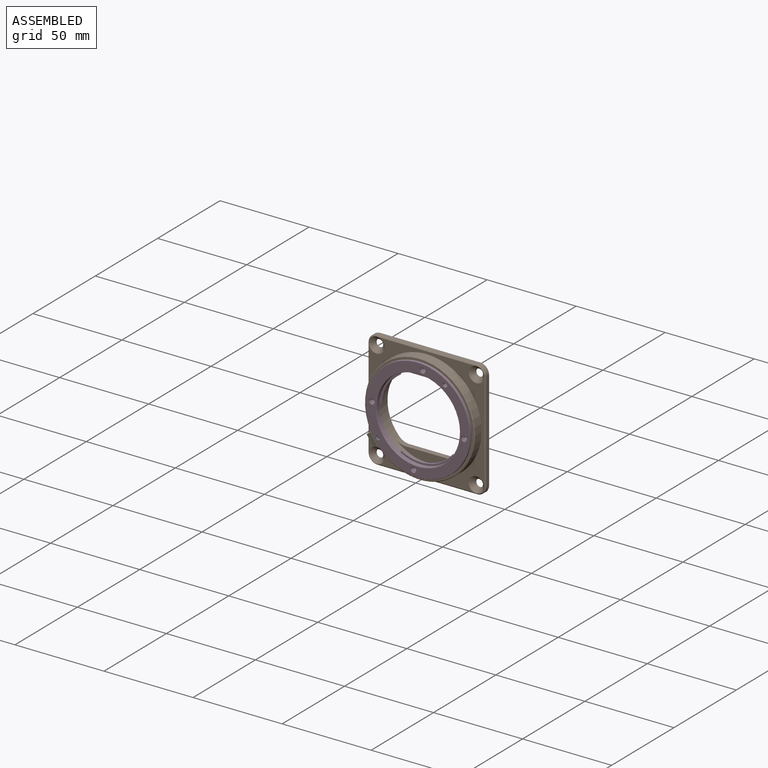
[diagram: assembled view]
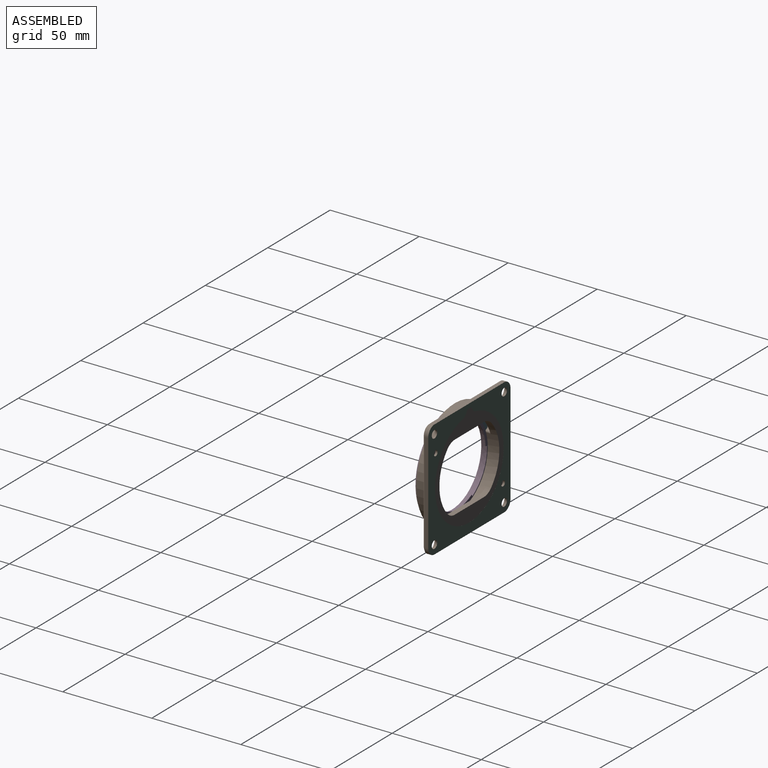
[diagram: assembled view, second angle]
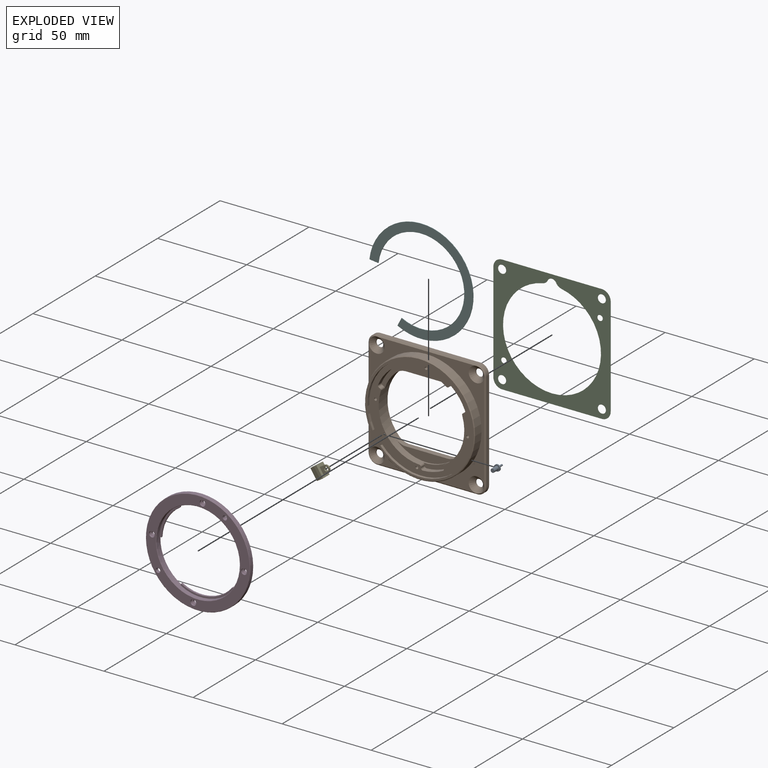
[diagram: exploded view]
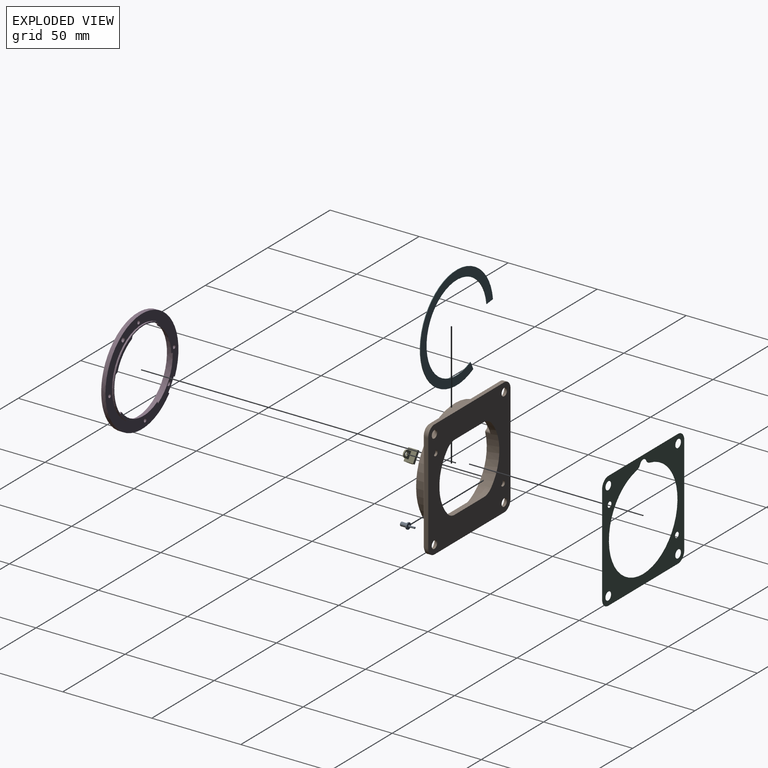
[diagram: exploded view, second angle]
ASSEMBLY  parts=6 mates=6
PART A: 7 faces, bbox 3.5x3.5x7.7 mm
  f0: cylinder r=1.07mm len=3.5mm, axis (0,0,-1), area 23.6mm2, adj f1,f4
  f1: plane 2.15x2.15mm, normal (0,0,-1), area 3.6mm2, adj f0
  f2: cylinder r=1.75mm len=3.5mm, axis (0,0,-1), area 7.5mm2, adj f3,f4
  f3: plane 3.5x3.5mm, normal (0,0,1), area 8.9mm2, adj f2,f5
  f4: plane 3.5x3.5mm, normal (0,0,-1), area 6mm2, adj f0,f2
  f5: cylinder r=0.47mm len=3.5mm, axis (0,0,-1), area 10.4mm2, adj f3,f6
  f6: plane 0.95x0.95mm, normal (0,0,1), area 0.7mm2, adj f5
PART B: 93 faces, bbox 66x8.6x66 mm
  f0: plane 4.07x0.53mm, normal (-0.83,0,-0.55), area 2.6mm2, adj f1,f2,f7,f22
  f1: cylinder r=2mm len=4.07mm, axis (0,-1,0), area 12.1mm2, adj f0,f7,f22,f52
  f2: cylinder r=2mm len=4.07mm, axis (0,-1,0), area 12.1mm2, adj f0,f7,f22,f53
  f3: plane 5.57x1.42mm, normal (0.44,0,-0.9), area 4.3mm2, adj f6,f7,f9,f22,f82,f83,f84
  f4: plane 5.57x1.19mm, normal (-0.66,0,0.75), area 4.3mm2, adj f5,f7,f9,f22,f82,f83,f84
  f5: cylinder r=0.5mm len=4.07mm, axis (0,1,0), area 2.9mm2, adj f4,f7,f22,f55
  f6: cylinder r=0.5mm len=4.07mm, axis (0,-1,0), area 2.9mm2, adj f3,f7,f22,f54
  f7: plane 58.65x58.65mm, normal (0,-1,0), area 759mm2, adj f0,f1,f2,f3,f4,f5,f6,f8
  f8: cylinder r=24.05mm len=48.1mm, axis (0,1,0), area 701.3mm2, adj f7,f23,f37,f39,f40,f41,f42,f43
  f9: cylinder r=30.9mm len=61.8mm, axis (0,1,0), area 961.4mm2, adj f3,f4,f22,f84
  f10: plane 56x2.3mm, normal (0,0,-1), area 128.8mm2, adj f11,f17,f23,f33
  f11: cylinder r=5mm len=5mm, axis (0,1,0), area 18.1mm2, adj f10,f12,f23,f35
  f12: plane 56x2.3mm, normal (1,0,0), area 128.8mm2, adj f11,f13,f23,f34
  f13: cylinder r=5mm len=5mm, axis (0,1,0), area 18.1mm2, adj f12,f14,f23,f32
  f14: plane 56x2.3mm, normal (0,0,1), area 128.8mm2, adj f13,f15,f23,f30
  f15: cylinder r=5mm len=5mm, axis (0,1,0), area 18.1mm2, adj f14,f16,f23,f28
  f16: plane 56x2.3mm, normal (-1,0,0), area 128.8mm2, adj f15,f17,f23,f29
  f17: cylinder r=5mm len=5mm, axis (0,1,0), area 18.1mm2, adj f10,f16,f23,f31
  f18: cylinder r=2.15mm len=4.3mm, axis (0,1,0), area 10.8mm2, adj f23,f26
  f19: cylinder r=2.15mm len=4.3mm, axis (0,1,0), area 10.8mm2, adj f23,f27
  f20: cylinder r=2.15mm len=4.3mm, axis (0,1,0), area 10.8mm2, adj f23,f24
  f21: cylinder r=2.15mm len=4.3mm, axis (0,1,0), area 10.8mm2, adj f23,f25
  f22: plane 64.6x64.6mm, normal (0,-1,0), area 949.8mm2, adj f0,f1,f2,f3,f4,f5,f6,f9
  f23: plane 66x66mm, normal (0,1,0), area 2650.2mm2, adj f8,f10,f11,f12,f13,f14,f15,f16
  f24: cone r=2.15mm half-angle=45deg, axis (0,-1,0), area 63.3mm2, adj f20,f22,f33,f34,f35
  f25: cone r=4.35mm half-angle=45deg, axis (0,-1,0), area 63.3mm2, adj f21,f22,f29,f31,f33
  f26: cone r=2.15mm half-angle=45deg, axis (0,-1,0), area 63.3mm2, adj f18,f22,f28,f29,f30
  f27: cone r=4.35mm half-angle=45deg, axis (0,-1,0), area 63.3mm2, adj f19,f22,f30,f32,f34
  f28: cone r=4.3mm half-angle=45deg, axis (0,1,0), area 7mm2, adj f15,f26,f29,f30
  f29: plane 56.02x0.72mm, normal (-0.71,-0.71,0), area 55.4mm2, adj f16,f22,f25,f26,f28,f31
  f30: plane 56.02x0.72mm, normal (0,-0.71,0.71), area 55.4mm2, adj f14,f22,f26,f27,f28,f32
  f31: cone r=4.3mm half-angle=45deg, axis (0,1,0), area 7mm2, adj f17,f25,f29,f33
  f32: cone r=4.3mm half-angle=45deg, axis (0,1,0), area 7mm2, adj f13,f27,f30,f34
  f33: plane 56.02x0.72mm, normal (0,-0.71,-0.71), area 55.4mm2, adj f10,f22,f24,f25,f31,f35
  f34: plane 56.02x0.72mm, normal (0.71,-0.71,0), area 55.4mm2, adj f12,f22,f24,f27,f32,f35
  f35: cone r=4.3mm half-angle=45deg, axis (0,1,0), area 7mm2, adj f11,f24,f33,f34
  f36: plane 23.28x3mm, normal (0,0,1), area 69.8mm2, adj f23,f37,f40,f41
  f37: plane 34.89x7.49mm, normal (0,-1,0), area 102.5mm2, adj f8,f36,f40,f41
  f38: plane 23.28x3mm, normal (0,0,-1), area 69.8mm2, adj f23,f39,f42,f43
  f39: plane 34.89x7.49mm, normal (0,-1,0), area 102.5mm2, adj f8,f38,f42,f43
  f40: cylinder r=8mm len=5.8mm, axis (0,1,0), area 19.5mm2, adj f8,f23,f36,f37
  f41: cylinder r=8mm len=5.8mm, axis (0,1,0), area 19.5mm2, adj f8,f23,f36,f37
  f42: cylinder r=8mm len=5.8mm, axis (0,1,0), area 19.5mm2, adj f8,f23,f38,f39
  f43: cylinder r=8mm len=5.8mm, axis (0,1,0), area 19.5mm2, adj f8,f23,f38,f39
  f44: cylinder r=0.75mm len=5mm, axis (0,-1,0), area 23.6mm2, adj f7,f45
  f45: plane 1.5x1.5mm, normal (0,-1,0), area 1.8mm2, adj f44
  f46: cylinder r=0.75mm len=5mm, axis (0,-1,0), area 23.6mm2, adj f7,f47
  f47: plane 1.5x1.5mm, normal (0,-1,0), area 1.8mm2, adj f46
  f48: cylinder r=0.75mm len=5mm, axis (0,-1,0), area 23.6mm2, adj f7,f49
  f49: plane 1.5x1.5mm, normal (0,-1,0), area 1.8mm2, adj f48
  f50: cylinder r=0.75mm len=5mm, axis (0,-1,0), area 23.6mm2, adj f7,f51
  f51: plane 1.5x1.5mm, normal (0,-1,0), area 1.8mm2, adj f50
  f52: plane 4.07x2.21mm, normal (-0.62,0,0.78), area 11.5mm2, adj f1,f7,f22,f81
  f53: plane 4.07x2.48mm, normal (0.48,0,-0.88), area 11.5mm2, adj f2,f7,f22,f80
  f54: plane 4.07x0.42mm, normal (-0.83,0,-0.55), area 2.1mm2, adj f6,f7,f22,f80
  f55: plane 4.07x0.42mm, normal (-0.83,0,-0.55), area 2.1mm2, adj f5,f7,f22,f81
  f56: plane 3x0.39mm, normal (-0.87,0,-0.49), area 1.4mm2, adj f7,f59,f68,f71
  f57: plane 3x0.45mm, normal (1,0,-0.01), area 1.4mm2, adj f7,f59,f69,f70
  f58: cylinder r=26.5mm len=11.34mm, axis (0,-1,0), area 35.4mm2, adj f7,f59,f68,f69
  f59: plane 13.85x6mm, normal (0,-1,0), area 32.4mm2, adj f8,f56,f57,f58,f68,f69,f70,f71
  f60: plane 3x0.42mm, normal (-0.35,0,0.94), area 1.4mm2, adj f7,f63,f72,f73
  f61: cylinder r=26.5mm len=10.15mm, axis (0,-1,0), area 38.2mm2, adj f7,f63,f73,f74
  f62: plane 3x0.36mm, normal (0.79,0,-0.61), area 1.4mm2, adj f7,f63,f74,f75
  f63: plane 13.11x10.62mm, normal (0,-1,0), area 34.5mm2, adj f8,f60,f61,f62,f72,f73,f74,f75
  f64: cylinder r=26.5mm len=9.5mm, axis (0,-1,0), area 35.4mm2, adj f7,f67,f76,f79
  f65: plane 3x0.42mm, normal (0.35,0,0.94), area 1.4mm2, adj f7,f67,f78,f79
  f66: plane 3x0.35mm, normal (-0.77,0,-0.63), area 1.4mm2, adj f7,f67,f76,f77
  f67: plane 12.49x10mm, normal (0,-1,0), area 32.4mm2, adj f8,f64,f65,f66,f76,f77,f78,f79
  f68: cylinder r=1mm len=3mm, axis (0,-1,0), area 4.8mm2, adj f7,f56,f58,f59
  f69: cylinder r=1mm len=3mm, axis (0,-1,0), area 4.8mm2, adj f7,f57,f58,f59
  f70: cylinder r=1mm len=3mm, axis (0,1,0), area 4.6mm2, adj f7,f8,f57,f59
  f71: cylinder r=1mm len=3mm, axis (0,1,0), area 4.6mm2, adj f7,f8,f56,f59
  f72: cylinder r=1mm len=3mm, axis (0,1,0), area 4.6mm2, adj f7,f8,f60,f63
  f73: cylinder r=1mm len=3mm, axis (0,-1,0), area 4.8mm2, adj f7,f60,f61,f63
  f74: cylinder r=1mm len=3mm, axis (0,-1,0), area 4.8mm2, adj f7,f61,f62,f63
  f75: cylinder r=1mm len=3mm, axis (0,1,0), area 4.6mm2, adj f7,f8,f62,f63
  f76: cylinder r=1mm len=3mm, axis (0,-1,0), area 4.8mm2, adj f7,f64,f66,f67
  f77: cylinder r=1mm len=3mm, axis (0,1,0), area 4.6mm2, adj f7,f8,f66,f67
  f78: cylinder r=1mm len=3mm, axis (0,1,0), area 4.6mm2, adj f7,f8,f65,f67
  f79: cylinder r=1mm len=3mm, axis (0,-1,0), area 4.8mm2, adj f7,f64,f65,f67
  f80: cylinder r=0.5mm len=4.07mm, axis (0,1,0), area 3mm2, adj f7,f22,f53,f54
  f81: cylinder r=0.5mm len=4.07mm, axis (0,1,0), area 3mm2, adj f7,f22,f52,f55
  f82: cylinder r=29.32mm len=58.65mm, axis (0,1,0), area 264.6mm2, adj f3,f4,f7,f83
  f83: plane 61x61mm, normal (0,-1,0), area 211.4mm2, adj f3,f4,f82,f84
  f84: cone r=30.5mm half-angle=45deg, axis (0,1,0), area 104.5mm2, adj f3,f4,f9,f83
  f85: plane 1.1x1.1mm, normal (0,-1,0), area 1mm2, adj f86
  f86: cylinder r=0.55mm len=4mm, axis (0,-1,0), area 13.8mm2, adj f85,f87
  f87: plane 2.1x2.1mm, normal (0,-1,0), area 2.5mm2, adj f86,f88
  f88: cylinder r=1.05mm len=2.1mm, axis (0,-1,0), area 13.7mm2, adj f22,f87
  f89: cylinder r=1.5mm len=3mm, axis (0,1,0), area 11.3mm2, adj f23,f90
  f90: plane 3x3mm, normal (0,1,0), area 7.1mm2, adj f89
  f91: cylinder r=1.5mm len=3mm, axis (0,1,0), area 11.3mm2, adj f23,f92
  f92: plane 3x3mm, normal (0,1,0), area 7.1mm2, adj f91
PART C: 20 faces, bbox 65.9x65.9x0 mm
  f0: plane 55.9x0.01mm, normal (0,-1,0), area 0.6mm2, adj f1,f17,f18,f19
  f1: cylinder r=5mm len=5mm, axis (0,0,-1), area 0.1mm2, adj f0,f2,f18,f19
  f2: plane 55.9x0.01mm, normal (1,0,0), area 0.6mm2, adj f1,f3,f18,f19
  f3: cylinder r=5mm len=5mm, axis (0,0,-1), area 0.1mm2, adj f2,f4,f18,f19
  f4: plane 55.9x0.01mm, normal (0,1,0), area 0.6mm2, adj f3,f5,f18,f19
  f5: cylinder r=5mm len=5mm, axis (0,0,-1), area 0.1mm2, adj f4,f6,f18,f19
  f6: plane 55.9x0.01mm, normal (-1,0,0), area 0.6mm2, adj f5,f17,f18,f19
  f7: cylinder r=2.65mm len=4.76mm, axis (0,0,-1), area 0.1mm2, adj f8,f16,f18,f19
  f8: cylinder r=4mm len=2.83mm, axis (0,0,-1), area 0mm2, adj f7,f9,f18,f19
  f9: cylinder r=27.5mm len=55mm, axis (0,0,-1), area 1.6mm2, adj f8,f16,f18,f19
  f10: cylinder r=2.25mm len=4.5mm, axis (0,0,-1), area 0.1mm2, adj f18,f19
  f11: cylinder r=2.25mm len=4.5mm, axis (0,0,-1), area 0.1mm2, adj f18,f19
  f12: cylinder r=2.25mm len=4.5mm, axis (0,0,-1), area 0.1mm2, adj f18,f19
  f13: cylinder r=1.5mm len=3mm, axis (0,0,-1), area 0.1mm2, adj f18,f19
  f14: cylinder r=1.5mm len=3mm, axis (0,0,-1), area 0.1mm2, adj f18,f19
  f15: cylinder r=2.25mm len=4.5mm, axis (0,0,-1), area 0.1mm2, adj f18,f19
  f16: cylinder r=4mm len=2.83mm, axis (0,0,-1), area 0mm2, adj f7,f9,f18,f19
  f17: cylinder r=5mm len=5mm, axis (0,0,-1), area 0.1mm2, adj f0,f6,f18,f19
  f18: plane 65.9x65.9mm, normal (0,0,1), area 1851.8mm2, adj f0,f1,f2,f3,f4,f5,f6,f7
  f19: plane 65.9x65.9mm, normal (0,0,-1), area 1851.8mm2, adj f0,f1,f2,f3,f4,f5,f6,f7
PART D: 48 faces, bbox 58.6x58.6x3.4 mm
  f0: cylinder r=1.25mm len=2.5mm, axis (0,0,-1), area 14.9mm2, adj f9,f47
  f1: plane 58.6x58.6mm, normal (0,0,-1), area 827.8mm2, adj f2,f3,f4,f5,f7,f8,f22,f43
  f2: cylinder r=1mm len=2mm, axis (0,0,-1), area 7.8mm2, adj f1,f39
  f3: cylinder r=1mm len=2mm, axis (0,0,-1), area 7.8mm2, adj f1,f41
  f4: cylinder r=1mm len=2mm, axis (0,0,-1), area 7.8mm2, adj f1,f35
  f5: cylinder r=1mm len=2mm, axis (0,0,-1), area 7.8mm2, adj f1,f37
  f6: cylinder r=23.45mm len=46.9mm, axis (0,0,-1), area 401.1mm2, adj f10,f11,f12,f14,f15,f17,f18,f20
  f7: cylinder r=1.25mm len=2.5mm, axis (0,0,-1), area 19.6mm2, adj f1,f9
  f8: cylinder r=29.3mm len=58.6mm, axis (0,0,-1), area 418.6mm2, adj f1,f33,f44,f45,f47
  f9: plane 58.2x58.2mm, normal (0,0,1), area 861.2mm2, adj f0,f7,f33,f34,f36,f38,f40,f42
  f10: plane 29.17x11.36mm, normal (0,0,1), area 30.9mm2, adj f6,f27,f28,f29
  f11: plane 14.61x12.93mm, normal (0,0,1), area 17.9mm2, adj f6,f30,f31,f32
  f12: plane 20.42x9.69mm, normal (0,0,1), area 21.4mm2, adj f6,f24,f25,f26
  f13: cylinder r=22.3mm len=12.78mm, axis (0,0,1), area 12.3mm2, adj f14,f21,f23,f31
  f14: plane 1.43x0.7mm, normal (0.9,0.44,0), area 1.1mm2, adj f6,f13,f23,f30
  f15: plane 1.58x0.7mm, normal (-0.99,0.12,0), area 1.1mm2, adj f6,f16,f23,f25
  f16: cylinder r=22.3mm len=18.83mm, axis (0,0,1), area 15mm2, adj f15,f17,f23,f26
  f17: plane 1.13x0.7mm, normal (-0.31,0.95,0), area 0.8mm2, adj f6,f16,f23,f24
  f18: plane 1.05x0.7mm, normal (0.91,-0.41,0), area 0.8mm2, adj f6,f19,f23,f28
  f19: cylinder r=22.3mm len=28.02mm, axis (0,0,1), area 22.4mm2, adj f18,f20,f23,f29
  f20: plane 0.98x0.7mm, normal (-0.53,-0.85,0), area 0.8mm2, adj f6,f19,f23,f27
  f21: plane 1.5x0.7mm, normal (0.33,0.95,0), area 1.1mm2, adj f6,f13,f23,f32
  f22: cylinder r=24mm len=48mm, axis (0,0,1), area 139.8mm2, adj f1,f23,f43,f46,f47
  f23: plane 48x48mm, normal (0,0,-1), area 167.8mm2, adj f6,f13,f14,f15,f16,f17,f18,f19
  f24: cylinder r=0.2mm len=1.19mm, axis (0.95,0.31,0), area 0.4mm2, adj f6,f12,f17,f26
  f25: cylinder r=0.2mm len=1.6mm, axis (0.12,0.99,0), area 0.5mm2, adj f6,f12,f15,f26
  f26: torus R=22.5mm, axis (0,0,-1), area 6.7mm2, adj f12,f16,f24,f25
  f27: cylinder r=0.2mm len=1.08mm, axis (-0.85,0.53,0), area 0.3mm2, adj f6,f10,f20,f29
  f28: cylinder r=0.2mm len=1.13mm, axis (-0.41,-0.91,0), area 0.3mm2, adj f6,f10,f18,f29
  f29: torus R=22.5mm, axis (0,0,-1), area 10mm2, adj f10,f19,f27,f28
  f30: cylinder r=0.2mm len=1.52mm, axis (0.44,-0.9,0), area 0.5mm2, adj f6,f11,f14,f31
  f31: torus R=22.5mm, axis (0,0,-1), area 5.5mm2, adj f11,f13,f30,f32
  f32: cylinder r=0.2mm len=1.57mm, axis (0.95,-0.33,0), area 0.5mm2, adj f6,f11,f21,f31
  f33: cone r=29.1mm half-angle=45deg, axis (0,0,-1), area 51.9mm2, adj f8,f9
  f34: cone r=23.45mm half-angle=45deg, axis (0,0,1), area 41.9mm2, adj f6,f9
  f35: cone r=0mm half-angle=59deg, axis (0,0,1), area 5.7mm2, adj f4,f36
  f36: cylinder r=1.6mm len=3.2mm, axis (0,0,1), area 9mm2, adj f9,f35
  f37: cone r=0mm half-angle=59deg, axis (0,0,1), area 5.7mm2, adj f5,f38
  f38: cylinder r=1.6mm len=3.2mm, axis (0,0,1), area 9mm2, adj f9,f37
  f39: cone r=0mm half-angle=59deg, axis (0,0,1), area 5.7mm2, adj f2,f40
  f40: cylinder r=1.6mm len=3.2mm, axis (0,0,1), area 9mm2, adj f9,f39
  f41: cone r=0mm half-angle=59deg, axis (0,0,1), area 5.7mm2, adj f3,f42
  f42: cylinder r=1.6mm len=3.2mm, axis (0,0,1), area 9mm2, adj f9,f41
  f43: cylinder r=1mm len=1.03mm, axis (0,0,-1), area 0.7mm2, adj f1,f22,f44,f47
  f44: plane 3.38x2.76mm, normal (0.63,-0.77,0), area 2.6mm2, adj f1,f8,f43,f47
  f45: plane 3.38x2.76mm, normal (-0.63,0.77,0), area 2.6mm2, adj f1,f8,f46,f47
  f46: cylinder r=1mm len=1.07mm, axis (0,0,-1), area 0.7mm2, adj f1,f22,f45,f47
  f47: plane 9.18x8.81mm, normal (0,0,-1), area 37.3mm2, adj f0,f8,f22,f43,f44,f45,f46
PART E: 16 faces, bbox 6.7x9.6x5.3 mm
  f0: cylinder r=2mm len=4mm, axis (0,0,-1), area 5mm2, adj f1,f3,f4,f5
  f1: plane 3x0.8mm, normal (-1,0,0), area 2.4mm2, adj f0,f4,f5,f8
  f2: cylinder r=1.2mm len=2.4mm, axis (0,0,-1), area 6mm2, adj f4,f5
  f3: plane 3x0.8mm, normal (1,0,0), area 2.4mm2, adj f0,f4,f5,f8
  f4: plane 5x4mm, normal (0,0,1), area 13.8mm2, adj f0,f1,f2,f3,f8
  f5: plane 5x4mm, normal (0,0,-1), area 13.8mm2, adj f0,f1,f2,f3,f8
  f6: plane 6.73x0.83mm, normal (0,-0.87,0.5), area 6.4mm2, adj f7,f13,f14,f15
  f7: plane 6.73x1.7mm, normal (0,0,1), area 11.4mm2, adj f6,f8,f14,f15
  f8: plane 6.73x5.3mm, normal (0,1,0), area 32.5mm2, adj f1,f3,f4,f5,f7,f9,f14,f15
  f9: plane 6.73x1.7mm, normal (0,0,-1), area 11.4mm2, adj f8,f10,f14,f15
  f10: plane 6.73x2.9mm, normal (0,-0.2,-0.98), area 19.9mm2, adj f9,f11,f14,f15
  f11: plane 6.73x1.9mm, normal (0,-1,0), area 12.8mm2, adj f10,f12,f14,f15
  f12: plane 6.73x0.76mm, normal (0,-0.45,0.89), area 5.8mm2, adj f11,f13,f14,f15
  f13: cylinder r=4mm len=6.73mm, axis (1,0,0), area 15.7mm2, adj f6,f12,f14,f15
  f14: plane 5.3x4.6mm, normal (-1,0,0), area 18.4mm2, adj f6,f7,f8,f9,f10,f11,f12,f13
  f15: plane 5.3x4.6mm, normal (1,0,0), area 18.4mm2, adj f6,f7,f8,f9,f10,f11,f12,f13
PART F: 6 faces, bbox 58.3x58.5x0.3 mm
  f0: plane 4.45x2.27mm, normal (-0.89,0.45,0), area 1.5mm2, adj f1,f3,f4,f5
  f1: cylinder r=29.25mm len=58.5mm, axis (0,0,-1), area 44.5mm2, adj f0,f2,f4,f5
  f2: plane 4.97x0.58mm, normal (-0.12,-0.99,0), area 1.5mm2, adj f1,f3,f4,f5
  f3: cylinder r=24.25mm len=48.5mm, axis (0,0,-1), area 36.9mm2, adj f0,f2,f4,f5
  f4: plane 58.5x58.3mm, normal (0,0,1), area 677.8mm2, adj f0,f1,f2,f3
  f5: plane 58.5x58.3mm, normal (0,0,-1), area 677.8mm2, adj f0,f1,f2,f3
PLACE A rot(axis=(-1,0,0),90deg) t=(-18.47,-3.2,-15.82)mm
PLACE B t=(3.93,6.06,-0.97)mm fixed
PLACE C rot(axis=(1,0,0),90deg) t=(-29.07,6.07,32.03)mm
PLACE D rot(axis=(0.04,-0.71,0.71),176deg) t=(3.93,-1.32,-0.97)mm
PLACE E rot(axis=(-0.35,-0.66,-0.66),140.9deg) t=(-18.47,-0.5,-15.82)mm
PLACE F rot(axis=(1,0,0),90deg) t=(3.93,-1.02,-0.97)mm
MATE revolute B.f46 <-> D.f2  axis (0,-1,0) through (1.35,-1.02,-26.84)mm
MATE revolute A.f0 <-> E.f2  axis (0,-1,0) through (-18.47,0.3,-15.82)mm
MATE fastened C.f9 <-> B.f8  axis (0,-1,0) through (3.93,6.06,-0.97)mm
MATE fastened B.f8 <-> F.f3  axis (0,-1,0) through (3.93,-1.02,-0.97)mm
MATE revolute B.f50 <-> D.f4  axis (0,-1,0) through (6.51,-1.02,24.9)mm
MATE fastened A.f2 <-> B.f86  axis (0,1,0) through (-18.47,0.98,-15.82)mm
